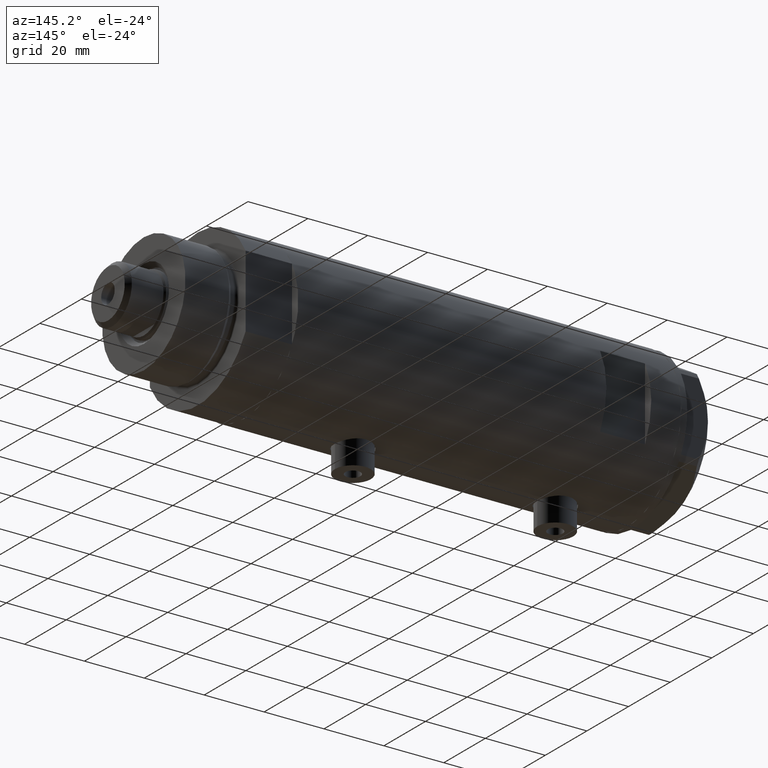
[diagram: clean part render]
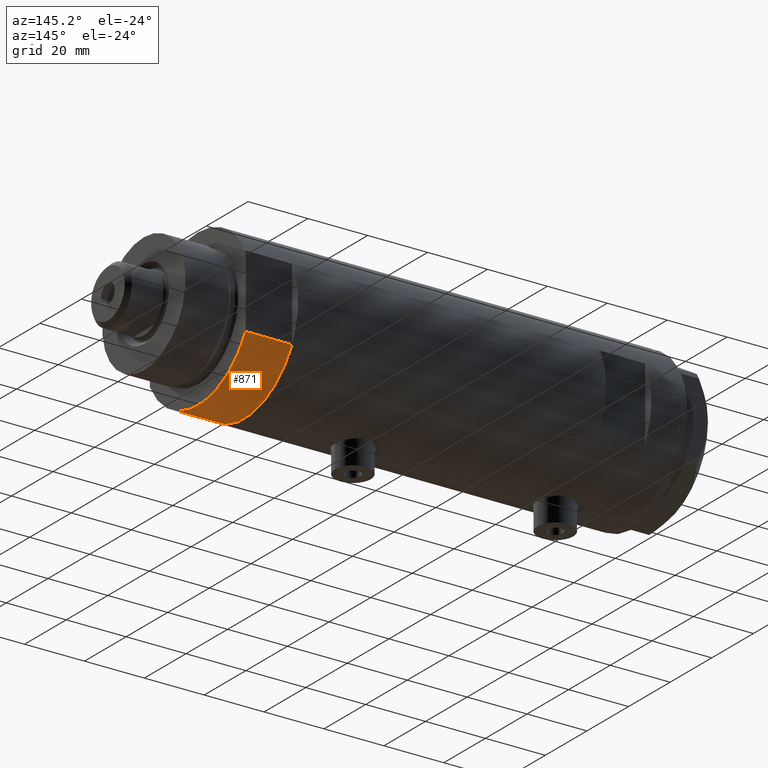
[diagram: same view with one face highlighted and labeled with its STEP entity id]
A machine part, auxiliary view. The second image highlights one B-rep face of the part: STEP entity #871.
In plain terms, the highlighted cylindrical surface (partial cylindrical patch) has radius 26 mm, axis along (-1, -0, 0).
Its self-contained STEP definition (entity closure, byte-faithful):
#136 = EDGE_LOOP ( 'NONE', ( #3370, #2984, #5037, #225 ) ) ;
#150 = LINE ( 'NONE', #572, #2284 ) ;
#225 = ORIENTED_EDGE ( 'NONE', *, *, #3326, .T. ) ;
#370 = VERTEX_POINT ( 'NONE', #4539 ) ;
#431 = CIRCLE ( 'NONE', #1615, 26.00000000000000355 ) ;
#572 = CARTESIAN_POINT ( 'NONE',  ( 12.12435565298215323, -22.99999999999999645, 0.000000000000000000 ) ) ;
#871 = ADVANCED_FACE ( 'NONE', ( #1415 ), #4202, .T. ) ;
#938 = AXIS2_PLACEMENT_3D ( 'NONE', #3019, #3418, #2153 ) ;
#1006 = CARTESIAN_POINT ( 'NONE',  ( 12.12435565298214080, 23.00000000000000355, 0.000000000000000000 ) ) ;
#1087 = EDGE_CURVE ( 'NONE', #4236, #2111, #4188, .T. ) ;
#1209 = VECTOR ( 'NONE', #2076, 1000.000000000000000 ) ;
#1248 = CARTESIAN_POINT ( 'NONE',  ( 0.000000000000000000, 0.000000000000000000, 0.000000000000000000 ) ) ;
#1286 = DIRECTION ( 'NONE',  ( -0.000000000000000000, -0.000000000000000000, 1.000000000000000000 ) ) ;
#1415 = FACE_OUTER_BOUND ( 'NONE', #136, .T. ) ;
#1615 = AXIS2_PLACEMENT_3D ( 'NONE', #2419, #2005, #5196 ) ;
#1705 = CARTESIAN_POINT ( 'NONE',  ( 12.12435565298215323, -22.99999999999999645, 0.000000000000000000 ) ) ;
#1838 = EDGE_CURVE ( 'NONE', #370, #4001, #431, .T. ) ;
#1939 = AXIS2_PLACEMENT_3D ( 'NONE', #1248, #2420, #4008 ) ;
#2005 = DIRECTION ( 'NONE',  ( 0.000000000000000000, 0.000000000000000000, 1.000000000000000000 ) ) ;
#2076 = DIRECTION ( 'NONE',  ( -0.000000000000000000, -0.000000000000000000, 1.000000000000000000 ) ) ;
#2111 = VERTEX_POINT ( 'NONE', #1006 ) ;
#2153 = DIRECTION ( 'NONE',  ( -1.000000000000000000, 0.000000000000000000, 0.000000000000000000 ) ) ;
#2284 = VECTOR ( 'NONE', #1286, 1000.000000000000000 ) ;
#2387 = LINE ( 'NONE', #2739, #1209 ) ;
#2419 = CARTESIAN_POINT ( 'NONE',  ( 0.000000000000000000, 0.000000000000000000, 15.50000000000000000 ) ) ;
#2420 = DIRECTION ( 'NONE',  ( 0.000000000000000000, 0.000000000000000000, 1.000000000000000000 ) ) ;
#2644 = EDGE_CURVE ( 'NONE', #4236, #370, #150, .T. ) ;
#2681 = CARTESIAN_POINT ( 'NONE',  ( 12.12435565298214790, 23.00000000000000355, 15.50000000000000000 ) ) ;
#2739 = CARTESIAN_POINT ( 'NONE',  ( 12.12435565298215323, 23.00000000000000355, 0.000000000000000000 ) ) ;
#2984 = ORIENTED_EDGE ( 'NONE', *, *, #2644, .F. ) ;
#3019 = CARTESIAN_POINT ( 'NONE',  ( 0.000000000000000000, 0.000000000000000000, 15.50000000000000000 ) ) ;
#3326 = EDGE_CURVE ( 'NONE', #2111, #4001, #2387, .T. ) ;
#3370 = ORIENTED_EDGE ( 'NONE', *, *, #1838, .F. ) ;
#3418 = DIRECTION ( 'NONE',  ( -0.000000000000000000, -0.000000000000000000, -1.000000000000000000 ) ) ;
#4001 = VERTEX_POINT ( 'NONE', #2681 ) ;
#4008 = DIRECTION ( 'NONE',  ( 1.000000000000000000, 0.000000000000000000, 0.000000000000000000 ) ) ;
#4188 = CIRCLE ( 'NONE', #1939, 26.00000000000000355 ) ;
#4202 = CYLINDRICAL_SURFACE ( 'NONE', #938, 26.00000000000000355 ) ;
#4236 = VERTEX_POINT ( 'NONE', #1705 ) ;
#4539 = CARTESIAN_POINT ( 'NONE',  ( 12.12435565298215323, -22.99999999999999645, 15.50000000000000000 ) ) ;
#5037 = ORIENTED_EDGE ( 'NONE', *, *, #1087, .T. ) ;
#5196 = DIRECTION ( 'NONE',  ( 1.000000000000000000, 0.000000000000000000, 0.000000000000000000 ) ) ;